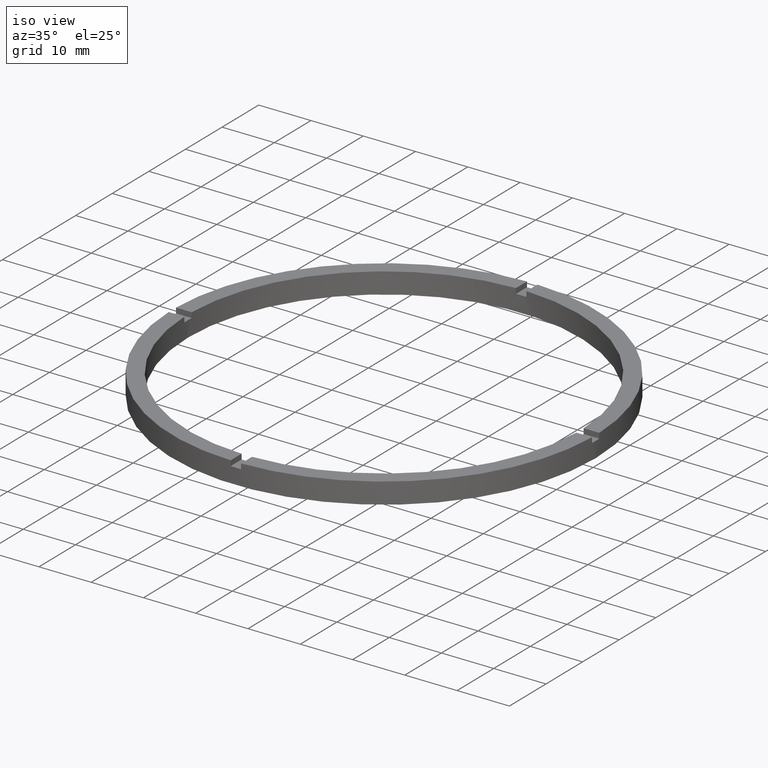
[diagram: clean part render]
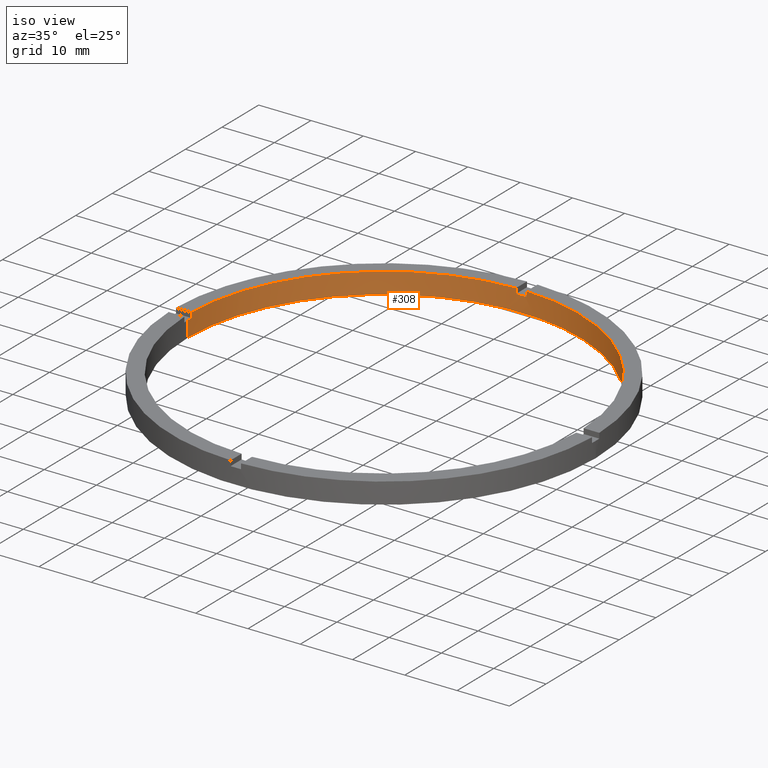
[diagram: same view with one face highlighted and labeled with its STEP entity id]
A machine part, iso view. The second image highlights one B-rep face of the part: STEP entity #308.
In plain terms, the highlighted cylindrical surface (partial cylindrical patch) has radius 37.5 mm, axis along (-0, -0, -1).
Its self-contained STEP definition (entity closure, byte-faithful):
#2 = CARTESIAN_POINT ( 'NONE',  ( 37.50000000000000711, 4.592425496802575156E-15, 3.000000000000000000 ) ) ;
#4 = CARTESIAN_POINT ( 'NONE',  ( -1.000000000000025535, 37.48666429545312440, 3.000000000000000000 ) ) ;
#10 = CIRCLE ( 'NONE', #291, 37.50000000000000711 ) ;
#13 = VECTOR ( 'NONE', #44, 1000.000000000000000 ) ;
#15 = CIRCLE ( 'NONE', #506, 37.50000000000000711 ) ;
#16 = DIRECTION ( 'NONE',  ( -0.000000000000000000, -0.000000000000000000, -1.000000000000000000 ) ) ;
#23 = CARTESIAN_POINT ( 'NONE',  ( 0.000000000000000000, 0.000000000000000000, 0.000000000000000000 ) ) ;
#24 = DIRECTION ( 'NONE',  ( 1.000000000000000000, 0.000000000000000000, 0.000000000000000000 ) ) ;
#36 = CIRCLE ( 'NONE', #309, 37.50000000000000711 ) ;
#42 = DIRECTION ( 'NONE',  ( -1.000000000000000000, 0.000000000000000000, 0.000000000000000000 ) ) ;
#44 = DIRECTION ( 'NONE',  ( -0.000000000000000000, -0.000000000000000000, -1.000000000000000000 ) ) ;
#67 = CARTESIAN_POINT ( 'NONE',  ( 0.000000000000000000, 0.000000000000000000, 3.000000000000000000 ) ) ;
#80 = LINE ( 'NONE', #493, #608 ) ;
#90 = EDGE_CURVE ( 'NONE', #753, #377, #610, .T. ) ;
#91 = CARTESIAN_POINT ( 'NONE',  ( 0.9999999999999744649, 37.48666429545313150, 4.000000000000000000 ) ) ;
#94 = VECTOR ( 'NONE', #527, 1000.000000000000000 ) ;
#99 = CARTESIAN_POINT ( 'NONE',  ( -1.000000000000025535, 37.48666429545312440, 4.000000000000000000 ) ) ;
#105 = CARTESIAN_POINT ( 'NONE',  ( -37.48666429545313150, 0.9999999999999720224, 3.000000000000000000 ) ) ;
#106 = CARTESIAN_POINT ( 'NONE',  ( 0.000000000000000000, 0.000000000000000000, 3.000000000000000000 ) ) ;
#112 = DIRECTION ( 'NONE',  ( 0.000000000000000000, 0.000000000000000000, 1.000000000000000000 ) ) ;
#115 = CARTESIAN_POINT ( 'NONE',  ( 37.48666429545313150, 0.9999999999998427924, 4.000000000000000000 ) ) ;
#118 = CARTESIAN_POINT ( 'NONE',  ( -37.50000000000000711, 0.000000000000000000, 4.000000000000000000 ) ) ;
#121 = CIRCLE ( 'NONE', #532, 37.50000000000000711 ) ;
#125 = DIRECTION ( 'NONE',  ( -0.000000000000000000, -0.000000000000000000, -1.000000000000000000 ) ) ;
#133 = ORIENTED_EDGE ( 'NONE', *, *, #655, .F. ) ;
#161 = ORIENTED_EDGE ( 'NONE', *, *, #772, .T. ) ;
#170 = CARTESIAN_POINT ( 'NONE',  ( 0.000000000000000000, 0.000000000000000000, 4.000000000000000000 ) ) ;
#173 = DIRECTION ( 'NONE',  ( 1.000000000000000000, 0.000000000000000000, 0.000000000000000000 ) ) ;
#185 = EDGE_CURVE ( 'NONE', #516, #761, #576, .T. ) ;
#203 = CARTESIAN_POINT ( 'NONE',  ( 37.48666429545313150, 0.9999999999998427924, 3.000000000000000000 ) ) ;
#214 = CARTESIAN_POINT ( 'NONE',  ( -37.50000000000000711, 0.000000000000000000, 3.000000000000000000 ) ) ;
#218 = ORIENTED_EDGE ( 'NONE', *, *, #518, .F. ) ;
#226 = ORIENTED_EDGE ( 'NONE', *, *, #185, .F. ) ;
#227 = CARTESIAN_POINT ( 'NONE',  ( 0.000000000000000000, 0.000000000000000000, 4.000000000000000000 ) ) ;
#231 = CARTESIAN_POINT ( 'NONE',  ( 37.50000000000000711, 4.592425496802575156E-15, 0.000000000000000000 ) ) ;
#232 = ORIENTED_EDGE ( 'NONE', *, *, #90, .F. ) ;
#237 = EDGE_CURVE ( 'NONE', #484, #246, #80, .T. ) ;
#243 = CARTESIAN_POINT ( 'NONE',  ( -37.50000000000000711, 0.000000000000000000, 0.000000000000000000 ) ) ;
#246 = VERTEX_POINT ( 'NONE', #203 ) ;
#248 = VERTEX_POINT ( 'NONE', #2 ) ;
#273 = ORIENTED_EDGE ( 'NONE', *, *, #237, .F. ) ;
#286 = CIRCLE ( 'NONE', #720, 37.50000000000000711 ) ;
#291 = AXIS2_PLACEMENT_3D ( 'NONE', #703, #767, #521 ) ;
#293 = EDGE_CURVE ( 'NONE', #766, #384, #581, .T. ) ;
#308 = ADVANCED_FACE ( 'NONE', ( #582 ), #600, .F. ) ;
#309 = AXIS2_PLACEMENT_3D ( 'NONE', #106, #565, #585 ) ;
#314 = LINE ( 'NONE', #747, #562 ) ;
#318 = CARTESIAN_POINT ( 'NONE',  ( 0.9999999999999744649, 37.48666429545313150, 4.000000000000000000 ) ) ;
#334 = VECTOR ( 'NONE', #373, 1000.000000000000000 ) ;
#341 = DIRECTION ( 'NONE',  ( 0.000000000000000000, 0.000000000000000000, 1.000000000000000000 ) ) ;
#347 = VECTOR ( 'NONE', #462, 1000.000000000000000 ) ;
#360 = AXIS2_PLACEMENT_3D ( 'NONE', #227, #125, #42 ) ;
#369 = DIRECTION ( 'NONE',  ( -0.000000000000000000, -0.000000000000000000, -1.000000000000000000 ) ) ;
#373 = DIRECTION ( 'NONE',  ( -0.000000000000000000, -0.000000000000000000, -1.000000000000000000 ) ) ;
#377 = VERTEX_POINT ( 'NONE', #584 ) ;
#384 = VERTEX_POINT ( 'NONE', #243 ) ;
#391 = EDGE_LOOP ( 'NONE', ( #133, #632, #273, #522, #226, #765, #218, #409, #232, #161, #424, #660 ) ) ;
#395 = DIRECTION ( 'NONE',  ( 1.000000000000000000, 0.000000000000000000, 0.000000000000000000 ) ) ;
#399 = VERTEX_POINT ( 'NONE', #4 ) ;
#403 = EDGE_CURVE ( 'NONE', #516, #399, #121, .T. ) ;
#405 = AXIS2_PLACEMENT_3D ( 'NONE', #485, #535, #24 ) ;
#409 = ORIENTED_EDGE ( 'NONE', *, *, #763, .T. ) ;
#424 = ORIENTED_EDGE ( 'NONE', *, *, #293, .T. ) ;
#462 = DIRECTION ( 'NONE',  ( 0.000000000000000000, 0.000000000000000000, 1.000000000000000000 ) ) ;
#484 = VERTEX_POINT ( 'NONE', #115 ) ;
#485 = CARTESIAN_POINT ( 'NONE',  ( 0.000000000000000000, 0.000000000000000000, 4.000000000000000000 ) ) ;
#487 = VERTEX_POINT ( 'NONE', #231 ) ;
#493 = CARTESIAN_POINT ( 'NONE',  ( 37.48666429545313150, 0.9999999999998427924, 4.000000000000000000 ) ) ;
#506 = AXIS2_PLACEMENT_3D ( 'NONE', #23, #112, #560 ) ;
#516 = VERTEX_POINT ( 'NONE', #742 ) ;
#518 = EDGE_CURVE ( 'NONE', #627, #399, #314, .T. ) ;
#521 = DIRECTION ( 'NONE',  ( 1.000000000000000000, 0.000000000000000000, 0.000000000000000000 ) ) ;
#522 = ORIENTED_EDGE ( 'NONE', *, *, #669, .T. ) ;
#527 = DIRECTION ( 'NONE',  ( 0.000000000000000000, 0.000000000000000000, 1.000000000000000000 ) ) ;
#532 = AXIS2_PLACEMENT_3D ( 'NONE', #67, #542, #395 ) ;
#535 = DIRECTION ( 'NONE',  ( 0.000000000000000000, 0.000000000000000000, 1.000000000000000000 ) ) ;
#539 = LINE ( 'NONE', #578, #13 ) ;
#542 = DIRECTION ( 'NONE',  ( 0.000000000000000000, -0.000000000000000000, 1.000000000000000000 ) ) ;
#544 = CIRCLE ( 'NONE', #405, 37.50000000000000711 ) ;
#560 = DIRECTION ( 'NONE',  ( 1.000000000000000000, 0.000000000000000000, 0.000000000000000000 ) ) ;
#562 = VECTOR ( 'NONE', #16, 1000.000000000000000 ) ;
#565 = DIRECTION ( 'NONE',  ( 0.000000000000000000, 0.000000000000000000, 1.000000000000000000 ) ) ;
#576 = LINE ( 'NONE', #318, #347 ) ;
#578 = CARTESIAN_POINT ( 'NONE',  ( 37.50000000000000711, 4.592425496802575156E-15, 4.000000000000000000 ) ) ;
#581 = LINE ( 'NONE', #118, #334 ) ;
#582 = FACE_OUTER_BOUND ( 'NONE', #391, .T. ) ;
#584 = CARTESIAN_POINT ( 'NONE',  ( -37.48666429545313150, 0.9999999999999720224, 4.000000000000000000 ) ) ;
#585 = DIRECTION ( 'NONE',  ( 1.000000000000000000, 0.000000000000000000, 0.000000000000000000 ) ) ;
#600 = CYLINDRICAL_SURFACE ( 'NONE', #360, 37.50000000000000711 ) ;
#608 = VECTOR ( 'NONE', #369, 1000.000000000000000 ) ;
#610 = LINE ( 'NONE', #775, #94 ) ;
#627 = VERTEX_POINT ( 'NONE', #99 ) ;
#632 = ORIENTED_EDGE ( 'NONE', *, *, #650, .T. ) ;
#650 = EDGE_CURVE ( 'NONE', #248, #246, #36, .T. ) ;
#655 = EDGE_CURVE ( 'NONE', #248, #487, #539, .T. ) ;
#660 = ORIENTED_EDGE ( 'NONE', *, *, #700, .F. ) ;
#669 = EDGE_CURVE ( 'NONE', #484, #761, #544, .T. ) ;
#700 = EDGE_CURVE ( 'NONE', #487, #384, #15, .T. ) ;
#703 = CARTESIAN_POINT ( 'NONE',  ( 0.000000000000000000, 0.000000000000000000, 3.000000000000000000 ) ) ;
#720 = AXIS2_PLACEMENT_3D ( 'NONE', #170, #341, #173 ) ;
#742 = CARTESIAN_POINT ( 'NONE',  ( 0.9999999999999744649, 37.48666429545313150, 3.000000000000000000 ) ) ;
#747 = CARTESIAN_POINT ( 'NONE',  ( -1.000000000000025535, 37.48666429545312440, 4.000000000000000000 ) ) ;
#753 = VERTEX_POINT ( 'NONE', #105 ) ;
#761 = VERTEX_POINT ( 'NONE', #91 ) ;
#763 = EDGE_CURVE ( 'NONE', #627, #377, #286, .T. ) ;
#765 = ORIENTED_EDGE ( 'NONE', *, *, #403, .T. ) ;
#766 = VERTEX_POINT ( 'NONE', #214 ) ;
#767 = DIRECTION ( 'NONE',  ( 0.000000000000000000, 0.000000000000000000, 1.000000000000000000 ) ) ;
#772 = EDGE_CURVE ( 'NONE', #753, #766, #10, .T. ) ;
#775 = CARTESIAN_POINT ( 'NONE',  ( -37.48666429545313150, 0.9999999999999720224, 4.000000000000000000 ) ) ;